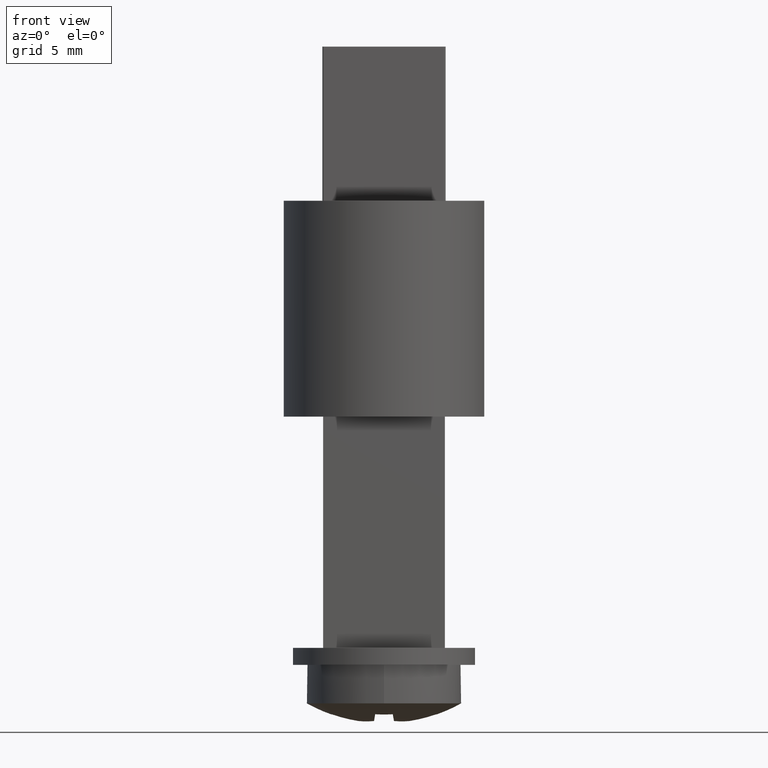
[diagram: clean part render]
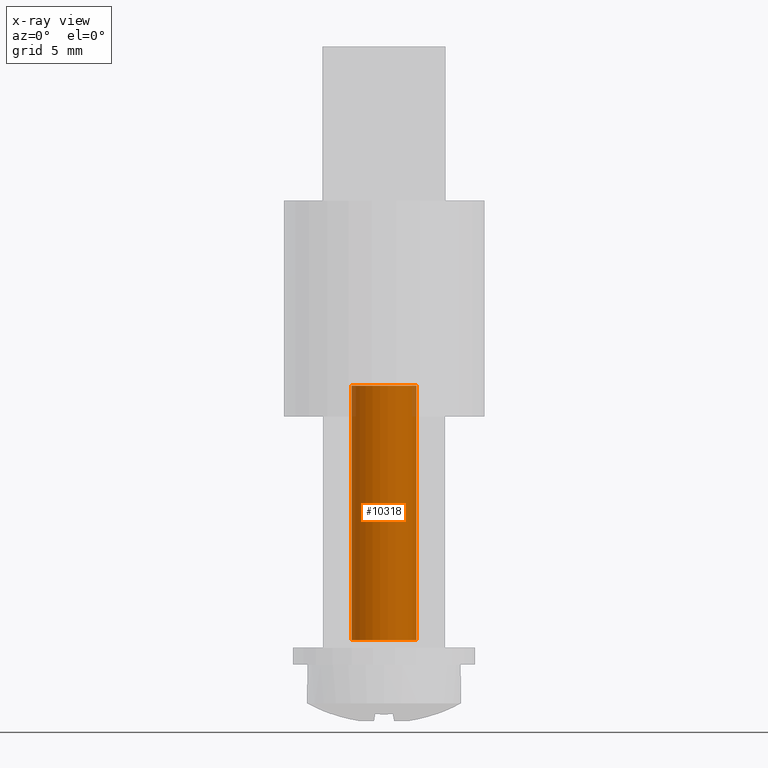
[diagram: x-ray — body ghosted, one internal face saturated and labeled with its STEP entity id]
A machine part, front view, then the same camera in x-ray: the body is ghosted and one INTERNAL B-rep face — a face not visible from any outside direction — is saturated and labeled: STEP entity #10318.
In plain terms, the highlighted cylindrical surface (edge-blend (fillet) strip) has radius 2.1 mm, axis along (-0, -0, -1).
Its self-contained STEP definition (entity closure, byte-faithful):
#452 = CYLINDRICAL_SURFACE ( 'NONE', #7066, 2.099999999999996980 ) ;
#518 = DIRECTION ( 'NONE',  ( -1.000000000000000000, 0.000000000000000000, 0.000000000000000000 ) ) ;
#1118 = VERTEX_POINT ( 'NONE', #1656 ) ;
#1643 = CARTESIAN_POINT ( 'NONE',  ( -2.099999999999996536, 0.000000000000000000, -4.999999999999997335 ) ) ;
#1656 = CARTESIAN_POINT ( 'NONE',  ( 2.099999999999996980, 2.571758278209438013E-16, -21.50000000000000000 ) ) ;
#1981 = CARTESIAN_POINT ( 'NONE',  ( 0.000000000000000000, 0.000000000000000000, -21.50000000000000000 ) ) ;
#2295 = CARTESIAN_POINT ( 'NONE',  ( 0.000000000000000000, 0.000000000000000000, -4.999999999999997335 ) ) ;
#4475 = VERTEX_POINT ( 'NONE', #15286 ) ;
#4490 = LINE ( 'NONE', #7861, #10004 ) ;
#4579 = CIRCLE ( 'NONE', #7534, 2.099999999999996536 ) ;
#4735 = CARTESIAN_POINT ( 'NONE',  ( 0.000000000000000000, 0.000000000000000000, -22.00000000000000000 ) ) ;
#4828 = DIRECTION ( 'NONE',  ( -1.000000000000000000, 0.000000000000000000, 0.000000000000000000 ) ) ;
#4829 = VERTEX_POINT ( 'NONE', #1643 ) ;
#4885 = EDGE_LOOP ( 'NONE', ( #7200, #7165, #14154, #12713 ) ) ;
#5353 = EDGE_CURVE ( 'NONE', #1118, #4475, #10110, .T. ) ;
#5763 = VECTOR ( 'NONE', #14586, 1000.000000000000000 ) ;
#6211 = EDGE_CURVE ( 'NONE', #4829, #4475, #9721, .T. ) ;
#6992 = EDGE_CURVE ( 'NONE', #13787, #4829, #4579, .T. ) ;
#7066 = AXIS2_PLACEMENT_3D ( 'NONE', #4735, #7206, #12400 ) ;
#7165 = ORIENTED_EDGE ( 'NONE', *, *, #14851, .T. ) ;
#7200 = ORIENTED_EDGE ( 'NONE', *, *, #6992, .F. ) ;
#7206 = DIRECTION ( 'NONE',  ( -0.000000000000000000, -0.000000000000000000, -1.000000000000000000 ) ) ;
#7534 = AXIS2_PLACEMENT_3D ( 'NONE', #2295, #11116, #4828 ) ;
#7861 = CARTESIAN_POINT ( 'NONE',  ( 2.099999999999996980, 2.571758278209438013E-16, -22.00000000000000000 ) ) ;
#9539 = CARTESIAN_POINT ( 'NONE',  ( 2.099999999999996536, 2.571758278209437027E-16, -4.999999999999997335 ) ) ;
#9721 = LINE ( 'NONE', #13315, #5763 ) ;
#10004 = VECTOR ( 'NONE', #15612, 1000.000000000000000 ) ;
#10110 = CIRCLE ( 'NONE', #15847, 2.099999999999996980 ) ;
#10280 = FACE_OUTER_BOUND ( 'NONE', #4885, .T. ) ;
#10318 = ADVANCED_FACE ( 'NONE', ( #10280 ), #452, .F. ) ;
#11116 = DIRECTION ( 'NONE',  ( -0.000000000000000000, -0.000000000000000000, -1.000000000000000000 ) ) ;
#12400 = DIRECTION ( 'NONE',  ( -1.000000000000000000, 0.000000000000000000, 0.000000000000000000 ) ) ;
#12713 = ORIENTED_EDGE ( 'NONE', *, *, #6211, .F. ) ;
#13267 = DIRECTION ( 'NONE',  ( 0.000000000000000000, 0.000000000000000000, -1.000000000000000000 ) ) ;
#13315 = CARTESIAN_POINT ( 'NONE',  ( -2.099999999999996980, 0.000000000000000000, -22.00000000000000000 ) ) ;
#13787 = VERTEX_POINT ( 'NONE', #9539 ) ;
#14154 = ORIENTED_EDGE ( 'NONE', *, *, #5353, .T. ) ;
#14586 = DIRECTION ( 'NONE',  ( -0.000000000000000000, -0.000000000000000000, -1.000000000000000000 ) ) ;
#14851 = EDGE_CURVE ( 'NONE', #13787, #1118, #4490, .T. ) ;
#15286 = CARTESIAN_POINT ( 'NONE',  ( -2.099999999999996980, 0.000000000000000000, -21.50000000000000000 ) ) ;
#15612 = DIRECTION ( 'NONE',  ( -0.000000000000000000, -0.000000000000000000, -1.000000000000000000 ) ) ;
#15847 = AXIS2_PLACEMENT_3D ( 'NONE', #1981, #13267, #518 ) ;